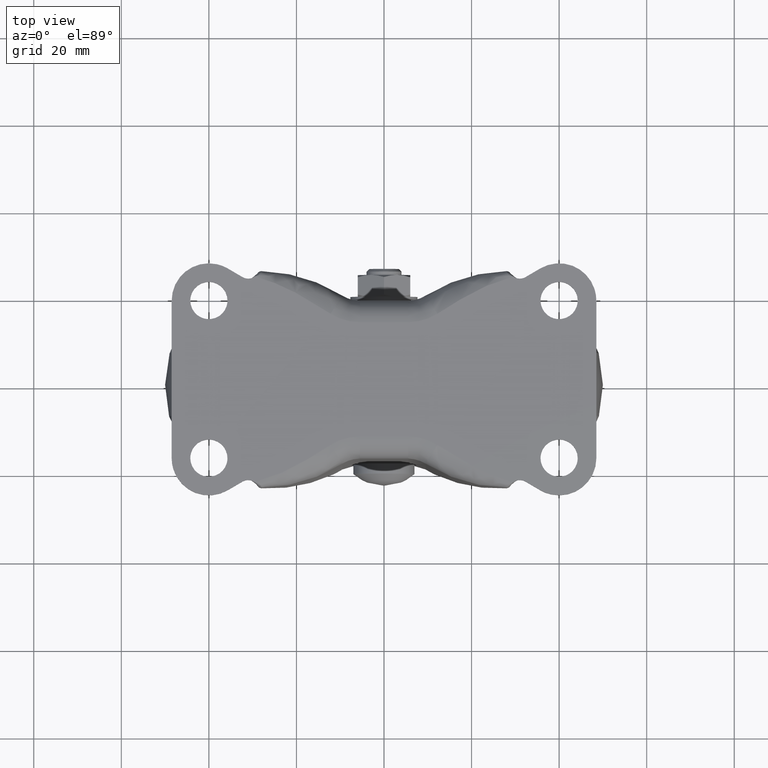
[diagram: clean part render]
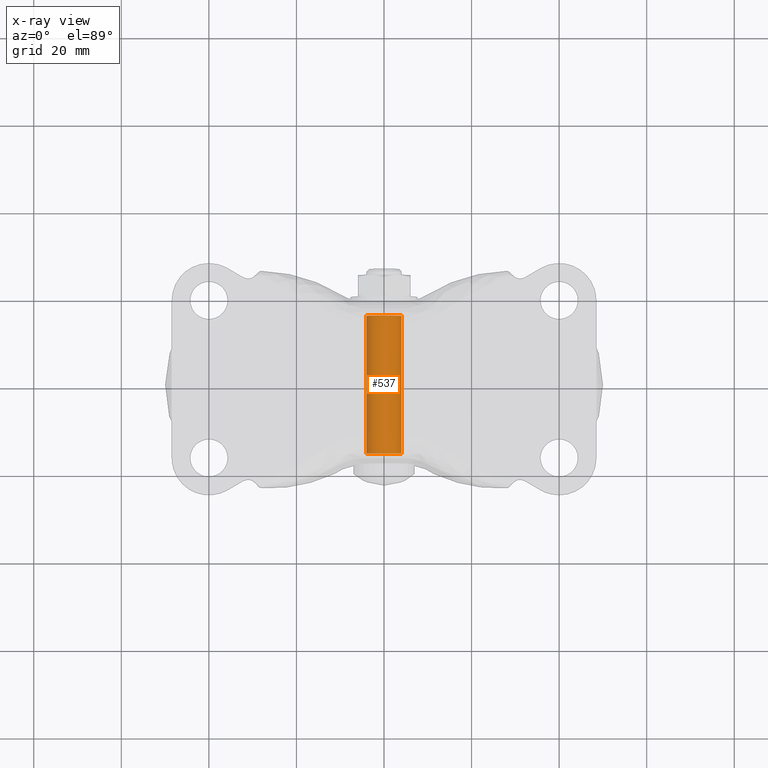
[diagram: x-ray — body ghosted, one internal face saturated and labeled with its STEP entity id]
A machine part, top view, then the same camera in x-ray: the body is ghosted and one INTERNAL B-rep face — a face not visible from any outside direction — is saturated and labeled: STEP entity #537.
In plain terms, the highlighted face is a freeform B-spline surface patch.
Its self-contained STEP definition (entity closure, byte-faithful):
#431=CARTESIAN_POINT('',(3.965031410349587,16.537500000000009,-73.531083523132679));
#432=CARTESIAN_POINT('',(3.968544636249803,16.537500000000005,-73.501527125386488));
#433=CARTESIAN_POINT('',(3.985550461794508,16.537499999999998,-73.358458914551917));
#434=CARTESIAN_POINT('',(3.992539193687552,16.537500000000001,-73.244194158139436));
#435=CARTESIAN_POINT('',(4.236733351826985,16.537499999999998,-69.251654964451888));
#436=CARTESIAN_POINT('',(0.244194158139433,16.537500000000001,-69.007460806312451));
#437=CARTESIAN_POINT('',(-3.748345035548120,16.537499999999998,-68.763266648173015));
#438=CARTESIAN_POINT('',(-3.994295409604991,16.537500000000005,-72.784519718295499));
#439=CARTESIAN_POINT('',(-3.996041193151293,16.537500000000012,-72.813063026970113));
#440=CARTESIAN_POINT('',(3.965031410349587,-16.557187500000001,-73.531083523132679));
#441=CARTESIAN_POINT('',(3.968544636249803,-16.557187500000005,-73.501527125386488));
#442=CARTESIAN_POINT('',(3.985550461794508,-16.557187500000005,-73.358458914551917));
#443=CARTESIAN_POINT('',(3.992539193687552,-16.557187500000008,-73.244194158139436));
#444=CARTESIAN_POINT('',(4.236733351826985,-16.557187500000001,-69.251654964451888));
#445=CARTESIAN_POINT('',(0.244194158139433,-16.557187500000008,-69.007460806312451));
#446=CARTESIAN_POINT('',(-3.748345035548120,-16.557187500000001,-68.763266648173015));
#447=CARTESIAN_POINT('',(-3.994295409604991,-16.557187500000005,-72.784519718295499));
#448=CARTESIAN_POINT('',(-3.996041193151293,-16.557187500000012,-72.813063026970113));
#456=(BOUNDED_SURFACE()B_SPLINE_SURFACE(2,1,((#431,#440),(#432,#441),(#433,#442),(#434,#443),(#435,#444),(#436,#445),(#437,#446),(#438,#447),(#439,#448)),.UNSPECIFIED.,.F.,.F.,.U.)B_SPLINE_SURFACE_WITH_KNOTS((3,1,2,2,1,3),(2,2),(0.0,0.067599693408012,0.332696373326799,6.960113371296459,13.587530369266119,13.655138295938180),(0.0,33.094687500000020),.UNSPECIFIED.)GEOMETRIC_REPRESENTATION_ITEM()RATIONAL_B_SPLINE_SURFACE(((0.972008777609409,0.972008777609409),(0.974757289202268,0.974757289202268),(0.988284271247462,0.988284271247462),(1.0,1.0),(0.707106781186548,0.707106781186548),(1.0,1.0),(0.707106781186548,0.707106781186548),(1.002987876463236,1.002987876463236),(1.005975752926472,1.005975752926472)))REPRESENTATION_ITEM('')SURFACE());
#457=CARTESIAN_POINT('',(3.972038105416649,-15.750000000000000,-73.472136938947585));
#458=VERTEX_POINT('',#457);
#459=CARTESIAN_POINT('',(0.0,-15.750000000000000,-68.999999999999915));
#460=VERTEX_POINT('',#459);
#461=CARTESIAN_POINT('',(3.972038105416649,-15.750000000000002,-73.472136938947585));
#462=CARTESIAN_POINT('',(4.000000000000085,-15.750000000000004,-73.236896478931570));
#463=CARTESIAN_POINT('',(4.000000000000085,-15.750000000000000,-73.0));
#464=CARTESIAN_POINT('',(4.000000000000084,-15.749999999999995,-68.999999999999915));
#465=CARTESIAN_POINT('',(0.0,-15.750000000000000,-68.999999999999915));
#473=(BOUNDED_CURVE()B_SPLINE_CURVE(2,(#461,#462,#463,#464,#465),.UNSPECIFIED.,.F.,.U.)B_SPLINE_CURVE_WITH_KNOTS((3,2,3),(0.229562473488367,0.250000000000000,0.500000000000000),.UNSPECIFIED.)CURVE()GEOMETRIC_REPRESENTATION_ITEM()RATIONAL_B_SPLINE_CURVE((0.956026754134422,0.976055948301691,1.0,0.707106781186547,1.0))REPRESENTATION_ITEM(''));
#474=EDGE_CURVE('',#458,#460,#473,.T.);
#475=ORIENTED_EDGE('',*,*,#474,.T.);
#476=CARTESIAN_POINT('',(-3.992539622714934,-15.750000000000041,-72.755812856598510));
#477=VERTEX_POINT('',#476);
#478=CARTESIAN_POINT('',(0.0,-15.750000000000000,-68.999999999999915));
#479=CARTESIAN_POINT('',(-3.762830891119416,-15.750000000000004,-68.999999999999901));
#480=CARTESIAN_POINT('',(-3.992539622714933,-15.750000000000036,-72.755812856598510));
#488=(BOUNDED_CURVE()B_SPLINE_CURVE(2,(#478,#479,#480),.UNSPECIFIED.,.F.,.U.)B_SPLINE_CURVE_WITH_KNOTS((3,3),(0.500000000000000,0.739333265400116),.UNSPECIFIED.)CURVE()GEOMETRIC_REPRESENTATION_ITEM()RATIONAL_B_SPLINE_CURVE((1.0,0.719603638111303,0.976072691399682))REPRESENTATION_ITEM(''));
#489=EDGE_CURVE('',#460,#477,#488,.T.);
#490=ORIENTED_EDGE('',*,*,#489,.T.);
#491=CARTESIAN_POINT('',(-3.992539617402729,15.750000000000000,-72.755812769739748));
#492=VERTEX_POINT('',#491);
#493=CARTESIAN_POINT('',(-3.992539617402729,15.750000000000000,-72.755812769739748));
#494=CARTESIAN_POINT('',(-3.992539622714934,-15.750000000000041,-72.755812856598510));
#495=QUASI_UNIFORM_CURVE('',1,(#493,#494),.UNSPECIFIED.,.F.,.U.);
#496=EDGE_CURVE('',#492,#477,#495,.T.);
#497=ORIENTED_EDGE('',*,*,#496,.F.);
#498=CARTESIAN_POINT('',(0.0,15.750000000000000,-68.999999999999915));
#499=VERTEX_POINT('',#498);
#500=CARTESIAN_POINT('',(0.0,15.750000000000000,-68.999999999999915));
#501=CARTESIAN_POINT('',(-3.762830809105071,15.749999999999995,-68.999999999999915));
#502=CARTESIAN_POINT('',(-3.992539617402729,15.749999999999998,-72.755812769739748));
#510=(BOUNDED_CURVE()B_SPLINE_CURVE(2,(#500,#501,#502),.UNSPECIFIED.,.F.,.U.)B_SPLINE_CURVE_WITH_KNOTS((3,3),(0.500000000000000,0.739333261646313),.UNSPECIFIED.)CURVE()GEOMETRIC_REPRESENTATION_ITEM()RATIONAL_B_SPLINE_CURVE((1.0,0.719603642509157,0.976072683354545))REPRESENTATION_ITEM(''));
#511=EDGE_CURVE('',#499,#492,#510,.T.);
#512=ORIENTED_EDGE('',*,*,#511,.F.);
#513=CARTESIAN_POINT('',(3.972038105416648,15.750000000000000,-73.472136938947585));
#514=VERTEX_POINT('',#513);
#515=CARTESIAN_POINT('',(3.972038105416648,15.749999999999996,-73.472136938947585));
#516=CARTESIAN_POINT('',(4.000000000000085,15.749999999999996,-73.236896478931584));
#517=CARTESIAN_POINT('',(4.000000000000085,15.750000000000000,-73.0));
#518=CARTESIAN_POINT('',(4.000000000000084,15.749999999999995,-68.999999999999915));
#519=CARTESIAN_POINT('',(0.0,15.750000000000000,-68.999999999999915));
#527=(BOUNDED_CURVE()B_SPLINE_CURVE(2,(#515,#516,#517,#518,#519),.UNSPECIFIED.,.F.,.U.)B_SPLINE_CURVE_WITH_KNOTS((3,2,3),(0.229562473488367,0.250000000000000,0.500000000000000),.UNSPECIFIED.)CURVE()GEOMETRIC_REPRESENTATION_ITEM()RATIONAL_B_SPLINE_CURVE((0.956026754134421,0.976055948301690,1.0,0.707106781186547,1.0))REPRESENTATION_ITEM(''));
#528=EDGE_CURVE('',#514,#499,#527,.T.);
#529=ORIENTED_EDGE('',*,*,#528,.F.);
#530=CARTESIAN_POINT('',(3.972038105416648,15.750000000000000,-73.472136938947585));
#531=CARTESIAN_POINT('',(3.972038105416649,-15.750000000000000,-73.472136938947585));
#532=QUASI_UNIFORM_CURVE('',1,(#530,#531),.UNSPECIFIED.,.F.,.U.);
#533=EDGE_CURVE('',#514,#458,#532,.T.);
#534=ORIENTED_EDGE('',*,*,#533,.T.);
#535=EDGE_LOOP('',(#475,#490,#497,#512,#529,#534));
#536=FACE_OUTER_BOUND('',#535,.T.);
#537=ADVANCED_FACE('',(#536),#456,.F.);